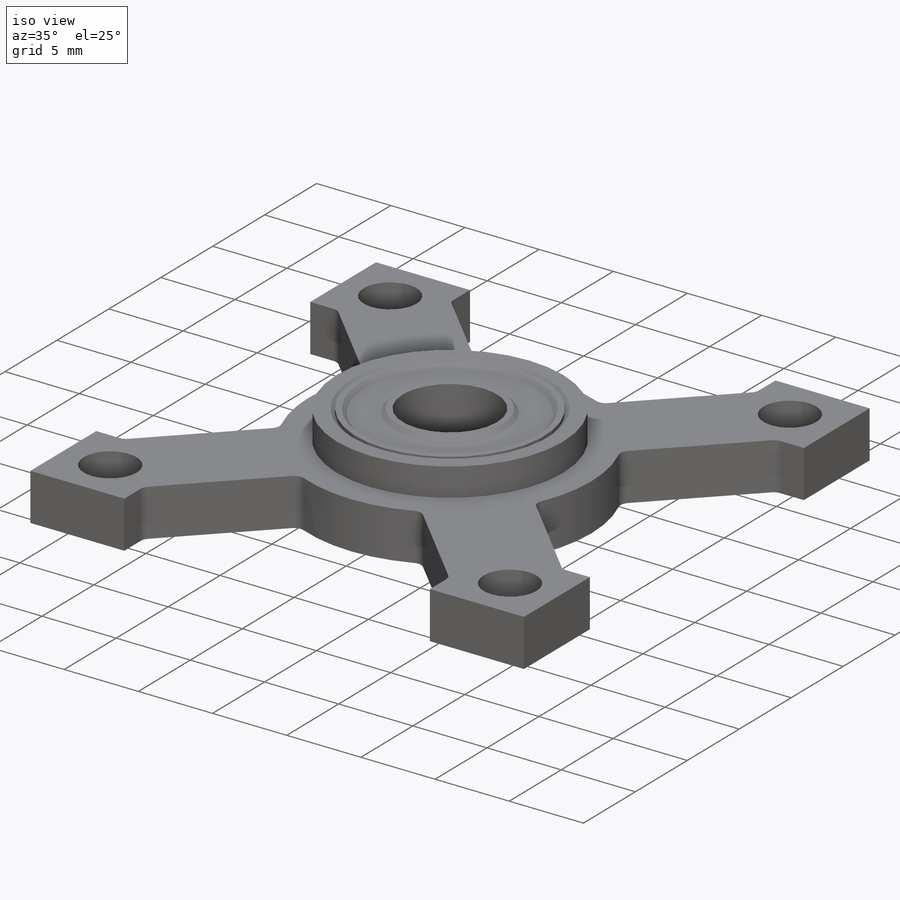
[diagram: iso view]
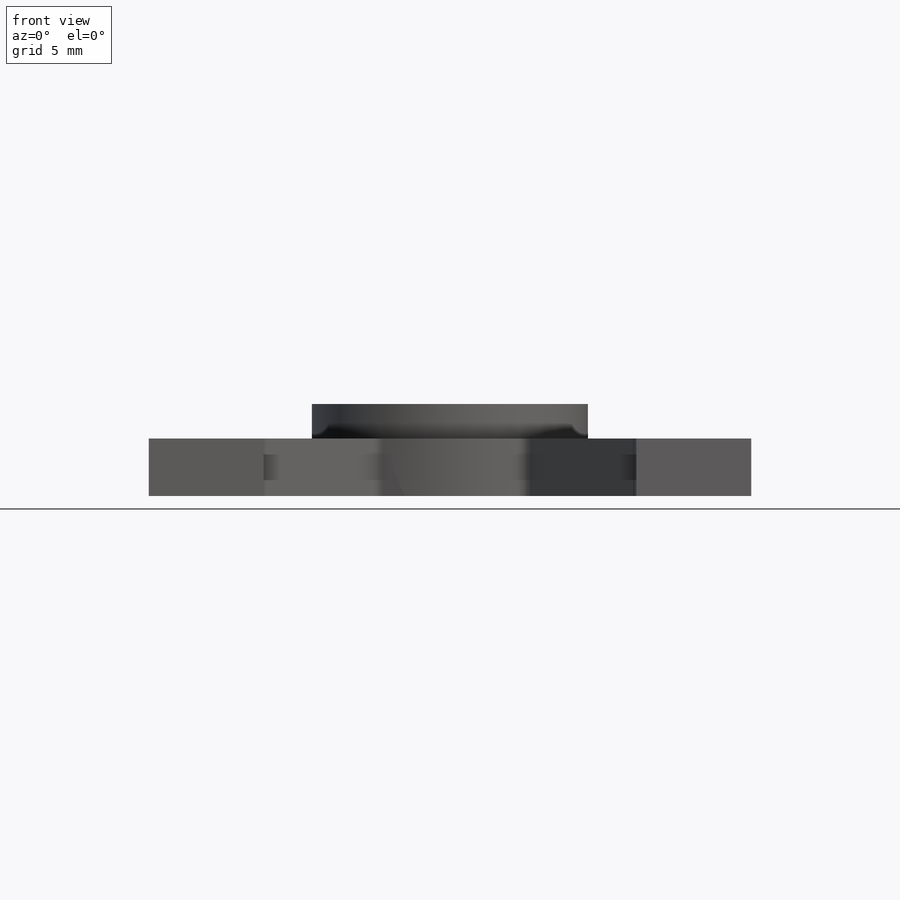
[diagram: front view]
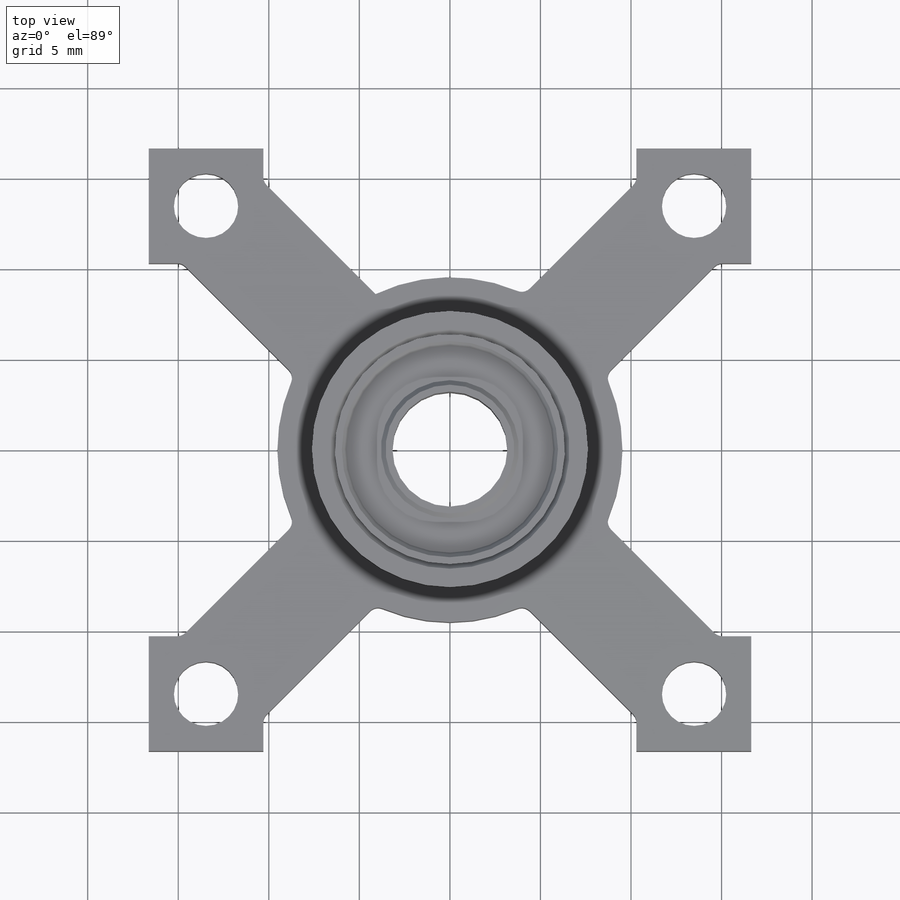
[diagram: top view]
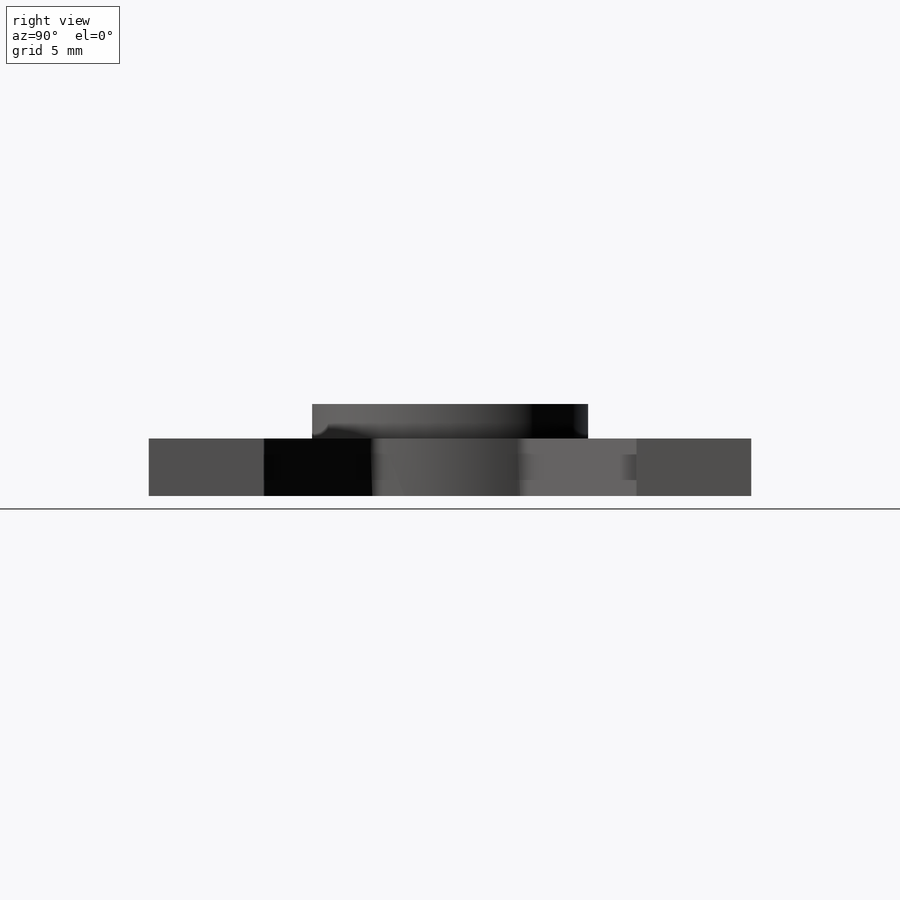
[diagram: right view]
SOLIDWORKS PART (.sldprt)
format: sldprt  version: not decoded by parser v0  size: 381,952 bytes
history: native  units: mm
features: sketch x5, extrude x5, chamfer x3, material x1, plane x1 (+13 scaffold rows collapsed)
feature tree (28):
  scaffold x13  (default folders/planes/origin — collapsed)
  material  "6061 Alloy"
  sketch  "Sketch1"  dims[c1.D1=~19.735297mm c1.D3=12.7mm c1.D4=3.556mm c1.D5=3.556mm c1.D11=~7.080933mm c1.D13=19.05mm c1.D12=0.635mm c1.D15=15.24mm c1.D16=18.415mm c2.D1=33.274mm c2.D2=33.274mm c2.D4=13.4747mm c2.D7=10.2997mm c2.D8=20.5994mm c2.D9=20.5994mm c2.D10=10.2997mm c2.D11=6.3373mm c3.D11=45.0deg c4.D11=3.175mm c4.D12=~8.760719mm c4.D14=13.4747mm c4.D4=19.05mm c5.D11=3.175mm c5.D12=3.175mm c5.D6=4.0 c6.D11=4.0]
  extrude  "Boss-Extrude1"  Depth=3.175mm
  sketch  "Sketch2"  dims[D1=15.24mm D2=12.7mm]
  extrude  "Boss-Extrude2"  Depth=1.905mm
  chamfer  "Chamfer1"  Distance=0.254mm Angle=45deg
  sketch  "Sketch3"  dims[D2=12.7mm D1=0.635mm]
  extrude  "Boss-Extrude3"  Depth=4.7625mm
  chamfer  "Chamfer4"  Distance=0.254mm Angle=45deg
  plane  "Plane1"
  sketch  "Sketch4"  dims[D3=3.81mm D1=2.54mm D2=0.635mm]
  extrude  "Boss-Extrude4"  Depth=4.2545mm
  sketch  "Sketch5"  dims[D1=6.35mm D2=7.62mm]
  extrude  "Boss-Extrude5"  Depth=4.7625mm
  chamfer  "Chamfer3"  Distance=0.254mm Angle=45deg
decode coverage: 13 of 13 modeling features carry decoded parameters
note: ~ marks probable driven/reference dimensions
note: suppression state not decoded; provenance and decode notes live in map.json
